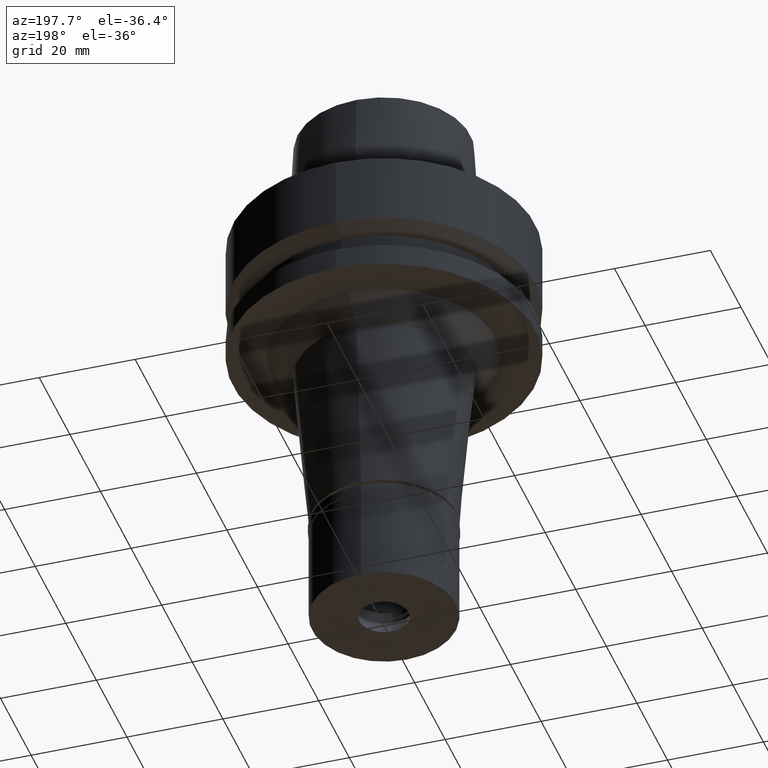
[diagram: clean part render]
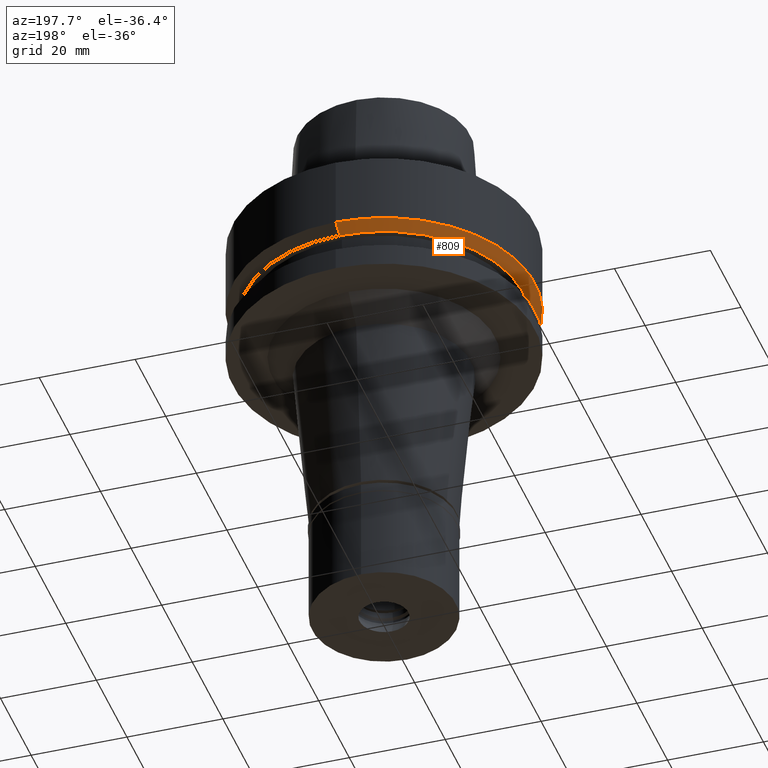
[diagram: same view with one face highlighted and labeled with its STEP entity id]
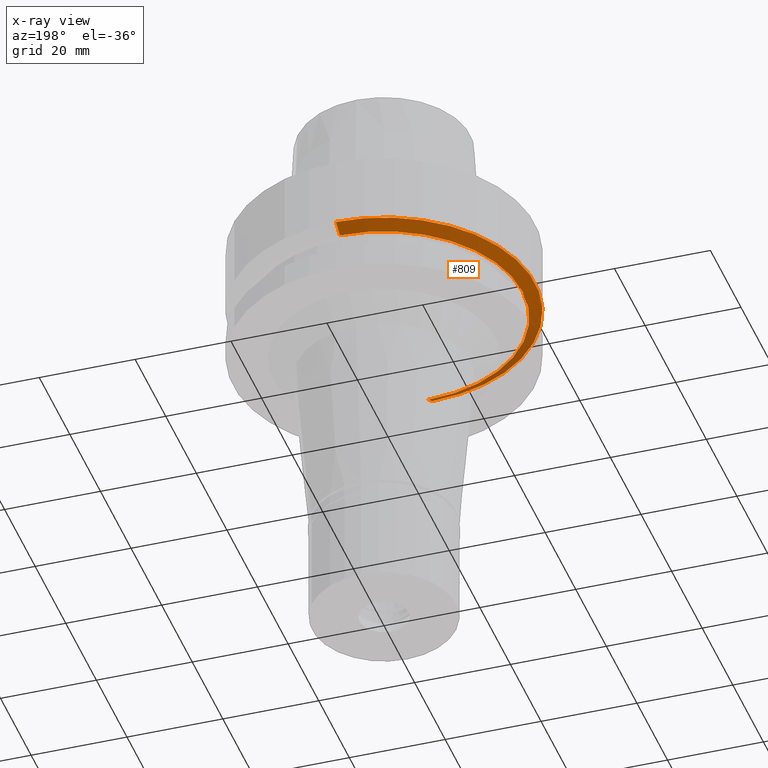
[diagram: x-ray of the same camera — body ghosted, the highlighted face saturated]
A machine part, auxiliary view. The second image highlights one B-rep face of the part: STEP entity #809.
The next image is the same camera in x-ray: the body ghosted, the highlighted face saturated — about 17% of this face is hidden behind the body in this view.
In plain terms, the highlighted conical surface has half-angle 60 deg.
Its self-contained STEP definition (entity closure, byte-faithful):
#49 = CARTESIAN_POINT ( 'NONE',  ( 0.0000000000000000000, -31.50000000000000000, -14.62250092523999889 ) ) ;
#152 = DIRECTION ( 'NONE',  ( 0.0000000000000000000, 0.0000000000000000000, 1.000000000000000000 ) ) ;
#397 = VERTEX_POINT ( 'NONE', #1738 ) ;
#438 = ORIENTED_EDGE ( 'NONE', *, *, #2335, .T. ) ;
#570 = DIRECTION ( 'NONE',  ( 0.0000000000000000000, -0.8660254037843856390, -0.5000000000000918154 ) ) ;
#785 = CARTESIAN_POINT ( 'NONE',  ( 0.0000000000000000000, 0.0000000000000000000, -14.62250092523999889 ) ) ;
#792 = AXIS2_PLACEMENT_3D ( 'NONE', #2151, #152, #1048 ) ;
#809 = ADVANCED_FACE ( 'NONE', ( #1274 ), #2147, .T. ) ;
#985 = VECTOR ( 'NONE', #989, 1000.000000000000000 ) ;
#989 = DIRECTION ( 'NONE',  ( 0.0000000000000000000, 0.8660254037843856390, -0.5000000000000918154 ) ) ;
#1028 = LINE ( 'NONE', #1434, #1630 ) ;
#1031 = CARTESIAN_POINT ( 'NONE',  ( 0.0000000000000000000, 28.89759526419000224, -16.12500000000000000 ) ) ;
#1048 = DIRECTION ( 'NONE',  ( 0.0000000000000000000, 1.000000000000000000, 0.0000000000000000000 ) ) ;
#1136 = VERTEX_POINT ( 'NONE', #49 ) ;
#1274 = FACE_OUTER_BOUND ( 'NONE', #2553, .T. ) ;
#1395 = ORIENTED_EDGE ( 'NONE', *, *, #1500, .F. ) ;
#1434 = CARTESIAN_POINT ( 'NONE',  ( 0.0000000000000000000, 31.50000000000000000, -14.62250092523999889 ) ) ;
#1467 = DIRECTION ( 'NONE',  ( 0.0000000000000000000, 1.000000000000000000, 0.0000000000000000000 ) ) ;
#1480 = DIRECTION ( 'NONE',  ( 0.0000000000000000000, 0.0000000000000000000, 1.000000000000000000 ) ) ;
#1500 = EDGE_CURVE ( 'NONE', #1136, #2294, #2098, .T. ) ;
#1530 = VERTEX_POINT ( 'NONE', #1031 ) ;
#1630 = VECTOR ( 'NONE', #570, 1000.000000000000000 ) ;
#1738 = CARTESIAN_POINT ( 'NONE',  ( 0.0000000000000000000, 31.50000000000000000, -14.62250092523999889 ) ) ;
#1861 = CARTESIAN_POINT ( 'NONE',  ( 0.0000000000000000000, -28.89759526419000224, -16.12500000000000000 ) ) ;
#1942 = DIRECTION ( 'NONE',  ( 0.0000000000000000000, 1.000000000000000000, 0.0000000000000000000 ) ) ;
#1945 = CIRCLE ( 'NONE', #2133, 28.89759526419000224 ) ;
#2098 = LINE ( 'NONE', #2563, #985 ) ;
#2133 = AXIS2_PLACEMENT_3D ( 'NONE', #2825, #1480, #1942 ) ;
#2147 = CONICAL_SURFACE ( 'NONE', #792, 30.19879763209999979, 1.047197551196400456 ) ;
#2151 = CARTESIAN_POINT ( 'NONE',  ( 0.0000000000000000000, 0.0000000000000000000, -15.37375046262000033 ) ) ;
#2242 = ORIENTED_EDGE ( 'NONE', *, *, #2250, .F. ) ;
#2250 = EDGE_CURVE ( 'NONE', #397, #1136, #2267, .T. ) ;
#2267 = CIRCLE ( 'NONE', #2536, 31.50000000000000000 ) ;
#2294 = VERTEX_POINT ( 'NONE', #1861 ) ;
#2335 = EDGE_CURVE ( 'NONE', #397, #1530, #1028, .T. ) ;
#2373 = EDGE_CURVE ( 'NONE', #1530, #2294, #1945, .T. ) ;
#2392 = ORIENTED_EDGE ( 'NONE', *, *, #2373, .T. ) ;
#2504 = DIRECTION ( 'NONE',  ( 0.0000000000000000000, 0.0000000000000000000, 1.000000000000000000 ) ) ;
#2536 = AXIS2_PLACEMENT_3D ( 'NONE', #785, #2504, #1467 ) ;
#2553 = EDGE_LOOP ( 'NONE', ( #2392, #1395, #2242, #438 ) ) ;
#2563 = CARTESIAN_POINT ( 'NONE',  ( 0.0000000000000000000, -31.50000000000000000, -14.62250092523999889 ) ) ;
#2825 = CARTESIAN_POINT ( 'NONE',  ( 0.0000000000000000000, 0.0000000000000000000, -16.12500000000000000 ) ) ;